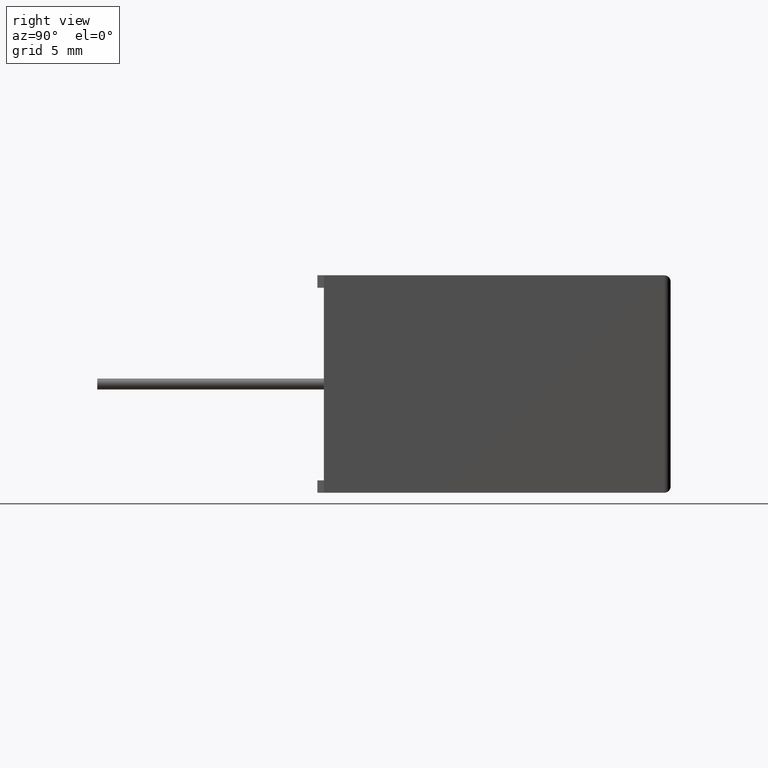
[diagram: clean part render]
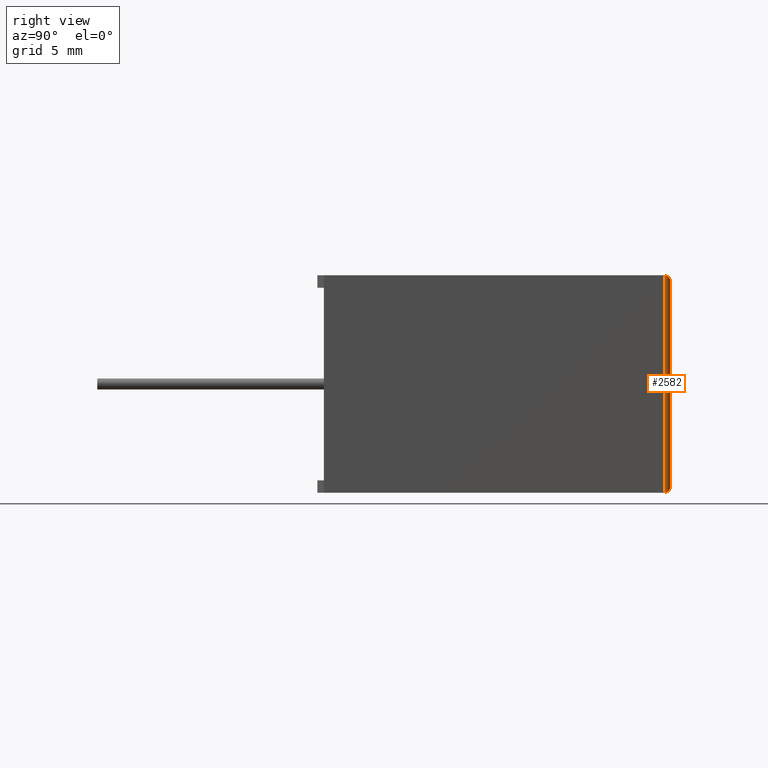
[diagram: same view with one face highlighted and labeled with its STEP entity id]
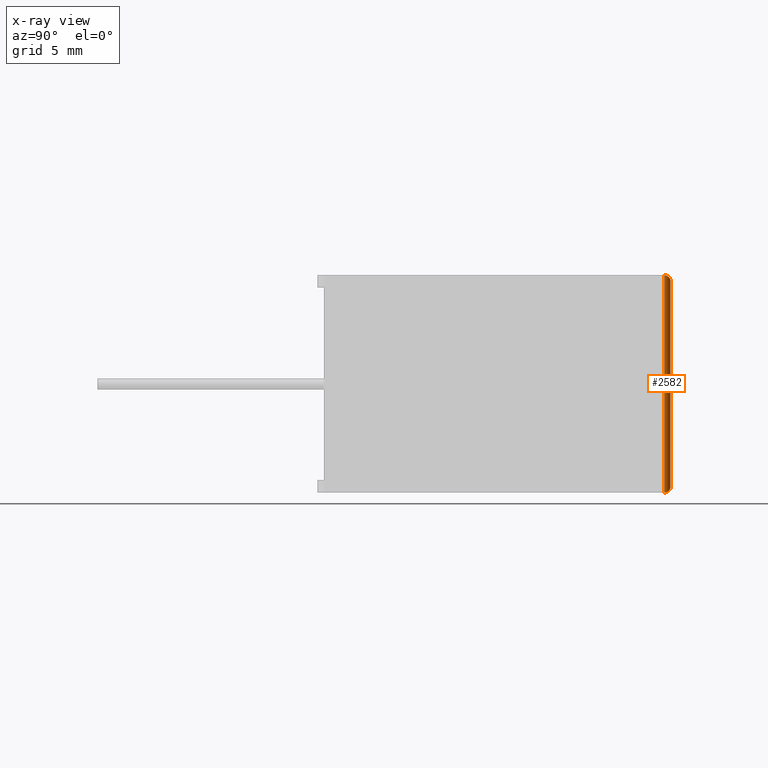
[diagram: x-ray of the same camera — body ghosted, the highlighted face saturated]
A machine part, right view. The second image highlights one B-rep face of the part: STEP entity #2582.
The next image is the same camera in x-ray: the body ghosted, the highlighted face saturated — about 0% of this face is hidden behind the body in this view.
In plain terms, the highlighted cylindrical surface (edge-blend (fillet) strip) has radius 0.5 mm, axis along (0, 0, -1).
Its self-contained STEP definition (entity closure, byte-faithful):
#76 = DIRECTION ( 'NONE',  ( -1.000000000000000000, 0.0000000000000000000, 0.0000000000000000000 ) ) ;
#102 = VERTEX_POINT ( 'NONE', #503 ) ;
#144 = CARTESIAN_POINT ( 'NONE',  ( 30.80000000000000100, 26.30000000000000100, 0.0000000000000000000 ) ) ;
#157 = DIRECTION ( 'NONE',  ( 0.0000000000000000000, 0.0000000000000000000, -1.000000000000000000 ) ) ;
#226 = CARTESIAN_POINT ( 'NONE',  ( 30.59289321881345500, 26.80000000000000100, 16.59289321881345500 ) ) ;
#239 = ORIENTED_EDGE ( 'NONE', *, *, #408, .T. ) ;
#246 =( BOUNDED_CURVE ( )  B_SPLINE_CURVE ( 3, ( #1015, #226, #2004, #2964 ),
 .UNSPECIFIED., .F., .F. ) 
 B_SPLINE_CURVE_WITH_KNOTS ( ( 4, 4 ),
 ( 1.570796326794896600, 3.141592653589793100 ),
 .UNSPECIFIED. ) 
 CURVE ( )  GEOMETRIC_REPRESENTATION_ITEM ( )  RATIONAL_B_SPLINE_CURVE ( ( 1.000000000000000000, 0.8047378541243649400, 0.8047378541243649400, 1.000000000000000000 ) ) 
 REPRESENTATION_ITEM ( '' )  );
#247 = ORIENTED_EDGE ( 'NONE', *, *, #253, .F. ) ;
#253 = EDGE_CURVE ( 'NONE', #2493, #2957, #1932, .T. ) ;
#408 = EDGE_CURVE ( 'NONE', #2493, #2654, #1933, .T. ) ;
#503 = CARTESIAN_POINT ( 'NONE',  ( 30.30000000000000100, 26.80000000000000100, 16.30000000000000100 ) ) ;
#526 = AXIS2_PLACEMENT_3D ( 'NONE', #1079, #3099, #76 ) ;
#545 = ORIENTED_EDGE ( 'NONE', *, *, #2418, .F. ) ;
#548 = CARTESIAN_POINT ( 'NONE',  ( 30.80000000000000100, 26.30000000000000100, 0.0000000000000000000 ) ) ;
#581 = EDGE_LOOP ( 'NONE', ( #2338, #247, #239, #545 ) ) ;
#621 = CARTESIAN_POINT ( 'NONE',  ( 30.79999999999999700, 26.59289321881345100, 5.421010862427522200E-016 ) ) ;
#679 = FACE_OUTER_BOUND ( 'NONE', #581, .T. ) ;
#706 = EDGE_CURVE ( 'NONE', #102, #2957, #246, .T. ) ;
#881 = CARTESIAN_POINT ( 'NONE',  ( 30.80000000000000100, 26.30000000000000100, 16.80000000000000100 ) ) ;
#1015 = CARTESIAN_POINT ( 'NONE',  ( 30.30000000000000100, 26.80000000000000100, 16.30000000000000100 ) ) ;
#1076 = DIRECTION ( 'NONE',  ( -0.0000000000000000000, -0.0000000000000000000, 1.000000000000000000 ) ) ;
#1079 = CARTESIAN_POINT ( 'NONE',  ( 30.30000000000000100, 26.30000000000000100, 16.80000000000000100 ) ) ;
#1103 = CARTESIAN_POINT ( 'NONE',  ( 30.30000000000000100, 26.80000000000000100, 0.5000000000000004400 ) ) ;
#1139 = VECTOR ( 'NONE', #1076, 1000.000000000000000 ) ;
#1607 = CARTESIAN_POINT ( 'NONE',  ( 30.30000000000000100, 26.80000000000000100, 0.5000000000000004400 ) ) ;
#1829 = LINE ( 'NONE', #2953, #2649 ) ;
#1932 = LINE ( 'NONE', #2339, #1139 ) ;
#1933 =( BOUNDED_CURVE ( )  B_SPLINE_CURVE ( 3, ( #144, #621, #2359, #1103 ),
 .UNSPECIFIED., .F., .F. ) 
 B_SPLINE_CURVE_WITH_KNOTS ( ( 4, 4 ),
 ( 0.0000000000000000000, 1.570796326794896600 ),
 .UNSPECIFIED. ) 
 CURVE ( )  GEOMETRIC_REPRESENTATION_ITEM ( )  RATIONAL_B_SPLINE_CURVE ( ( 1.000000000000000000, 0.8047378541243649400, 0.8047378541243649400, 1.000000000000000000 ) ) 
 REPRESENTATION_ITEM ( '' )  );
#2004 = CARTESIAN_POINT ( 'NONE',  ( 30.79999999999999700, 26.59289321881345100, 16.80000000000000100 ) ) ;
#2020 = CYLINDRICAL_SURFACE ( 'NONE', #526, 0.5000000000000004400 ) ;
#2338 = ORIENTED_EDGE ( 'NONE', *, *, #706, .T. ) ;
#2339 = CARTESIAN_POINT ( 'NONE',  ( 30.80000000000000100, 26.30000000000000100, 16.80000000000000100 ) ) ;
#2359 = CARTESIAN_POINT ( 'NONE',  ( 30.59289321881345500, 26.80000000000000100, 0.2071067811865480400 ) ) ;
#2418 = EDGE_CURVE ( 'NONE', #102, #2654, #1829, .T. ) ;
#2493 = VERTEX_POINT ( 'NONE', #548 ) ;
#2582 = ADVANCED_FACE ( 'NONE', ( #679 ), #2020, .T. ) ;
#2649 = VECTOR ( 'NONE', #157, 1000.000000000000000 ) ;
#2654 = VERTEX_POINT ( 'NONE', #1607 ) ;
#2953 = CARTESIAN_POINT ( 'NONE',  ( 30.30000000000000100, 26.80000000000000100, 16.80000000000000100 ) ) ;
#2957 = VERTEX_POINT ( 'NONE', #881 ) ;
#2964 = CARTESIAN_POINT ( 'NONE',  ( 30.80000000000000100, 26.30000000000000100, 16.80000000000000100 ) ) ;
#3099 = DIRECTION ( 'NONE',  ( 0.0000000000000000000, 0.0000000000000000000, -1.000000000000000000 ) ) ;